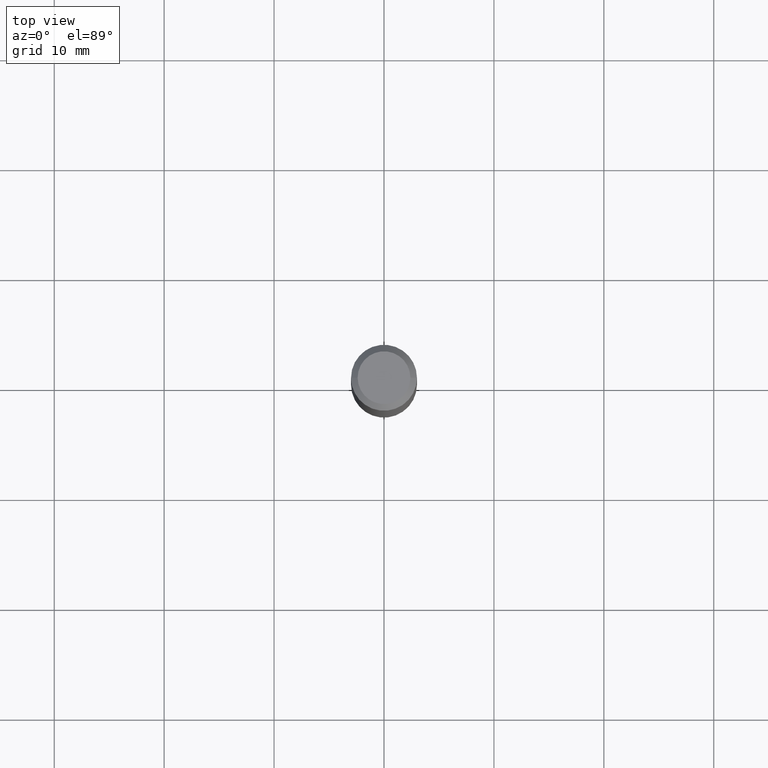
[diagram: clean part render]
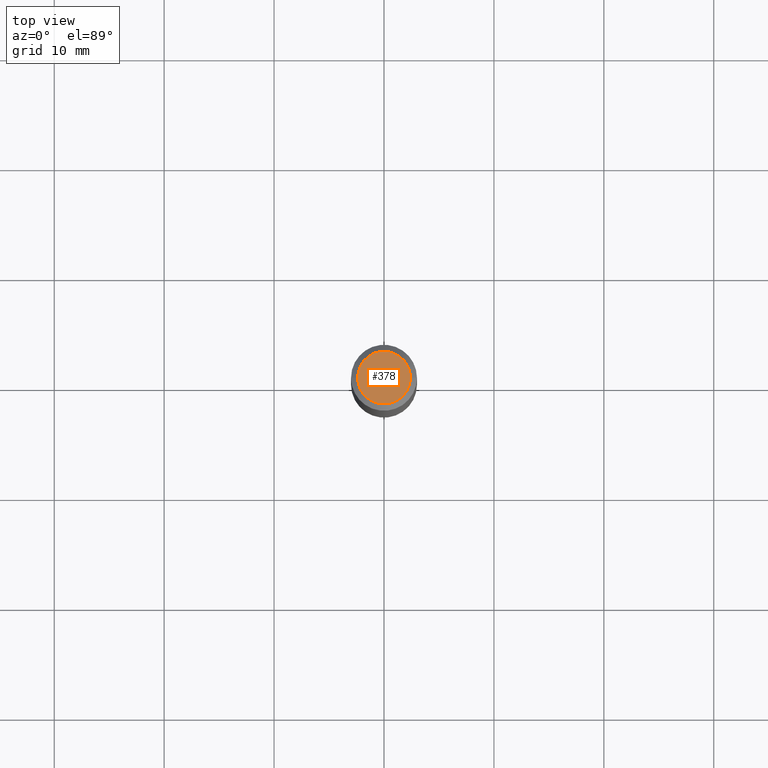
[diagram: same view with one face highlighted and labeled with its STEP entity id]
A machine part, top view. The second image highlights one B-rep face of the part: STEP entity #378.
In plain terms, the highlighted planar face has unit normal (0, -0, -1).
Its self-contained STEP definition (entity closure, byte-faithful):
#15 = CARTESIAN_POINT ( 'NONE',  ( 2.358133508849003952E-46, -3.366789680499277518E-32, -9.642868896486260050E-18 ) ) ;
#27 = CARTESIAN_POINT ( 'NONE',  ( 0.09447999999999998066, -7.704367267948738690E-16, -1.928573779296752193E-17 ) ) ;
#34 = ORIENTED_EDGE ( 'NONE', *, *, #188, .T. ) ;
#87 = AXIS2_PLACEMENT_3D ( 'NONE', #15, #437, #466 ) ;
#90 = CARTESIAN_POINT ( 'NONE',  ( 4.716267017698007905E-46, -6.733579360998555036E-32, -1.928573779297252010E-17 ) ) ;
#93 = FACE_OUTER_BOUND ( 'NONE', #215, .T. ) ;
#126 = CARTESIAN_POINT ( 'NONE',  ( 4.716267017698007905E-46, -6.733579360998555036E-32, -1.928573779297252010E-17 ) ) ;
#142 = EDGE_CURVE ( 'NONE', #181, #388, #383, .T. ) ;
#157 = CIRCLE ( 'NONE', #361, 0.09447999999999998066 ) ;
#181 = VERTEX_POINT ( 'NONE', #344 ) ;
#188 = EDGE_CURVE ( 'NONE', #388, #181, #157, .T. ) ;
#215 = EDGE_LOOP ( 'NONE', ( #281, #34 ) ) ;
#270 = DIRECTION ( 'NONE',  ( -2.445468806185136597E-29, 3.491481338843145583E-15, 1.000000000000000000 ) ) ;
#275 = PLANE ( 'NONE',  #87 ) ;
#281 = ORIENTED_EDGE ( 'NONE', *, *, #142, .T. ) ;
#344 = CARTESIAN_POINT ( 'NONE',  ( -0.09447999999999998066, 7.009847083995354710E-16, -1.928573779297727792E-17 ) ) ;
#361 = AXIS2_PLACEMENT_3D ( 'NONE', #90, #392, #395 ) ;
#378 = ADVANCED_FACE ( 'NONE', ( #93 ), #275, .F. ) ;
#383 = CIRCLE ( 'NONE', #478, 0.09447999999999998066 ) ;
#388 = VERTEX_POINT ( 'NONE', #27 ) ;
#392 = DIRECTION ( 'NONE',  ( -2.445468806185136597E-29, 3.491481338843145583E-15, 1.000000000000000000 ) ) ;
#395 = DIRECTION ( 'NONE',  ( 1.000000000000000000, -6.982962677686267499E-15, 4.875432709231658792E-29 ) ) ;
#431 = DIRECTION ( 'NONE',  ( 1.000000000000000000, -6.982962677686267499E-15, 4.875432709231658792E-29 ) ) ;
#437 = DIRECTION ( 'NONE',  ( 2.438088387897960049E-29, -3.491481338843145188E-15, -1.000000000000000000 ) ) ;
#466 = DIRECTION ( 'NONE',  ( -1.000000000000000000, 6.982962677686265922E-15, -4.876176775795935793E-29 ) ) ;
#478 = AXIS2_PLACEMENT_3D ( 'NONE', #126, #270, #431 ) ;